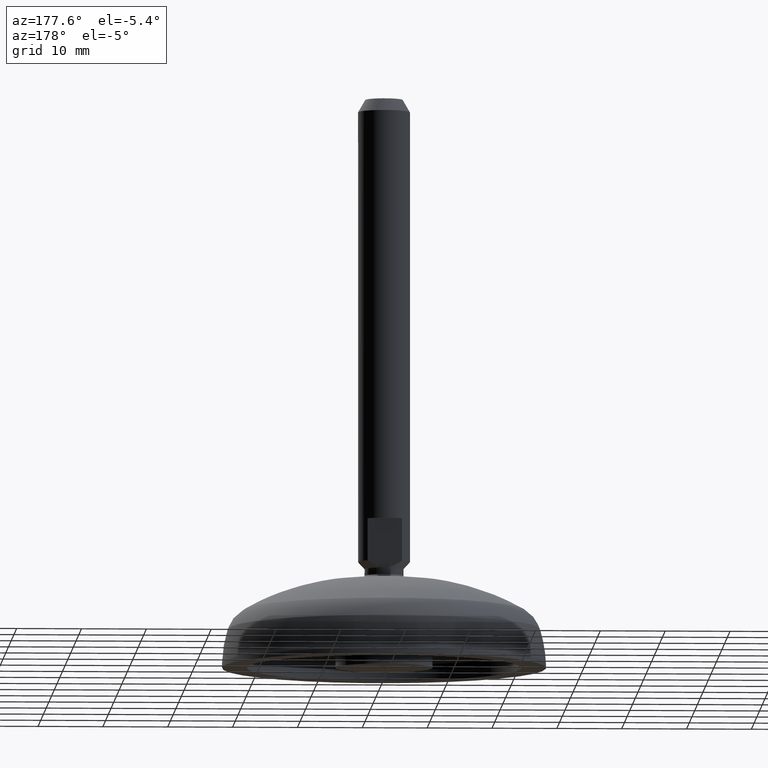
[diagram: clean part render]
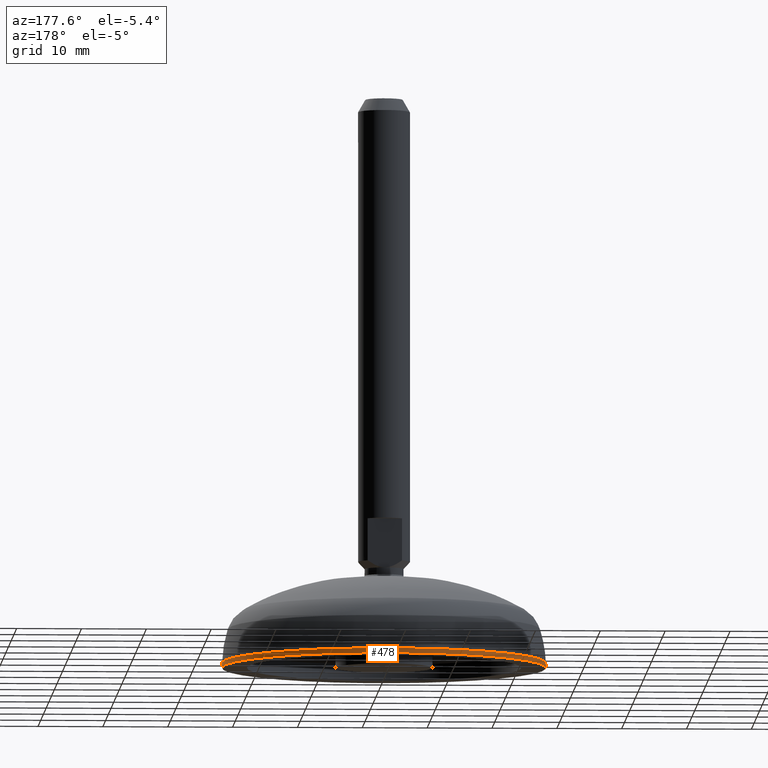
[diagram: same view with one face highlighted and labeled with its STEP entity id]
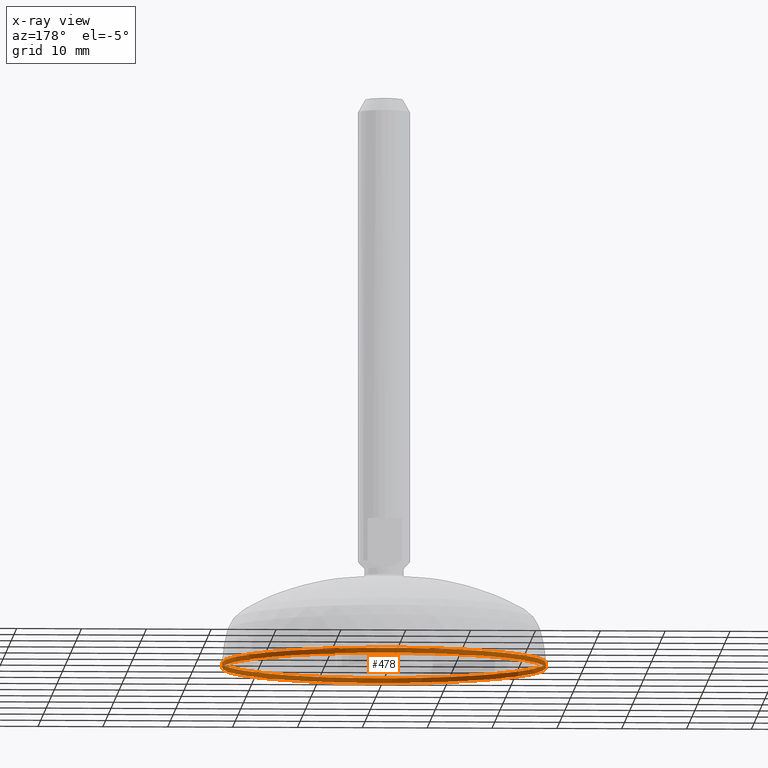
[diagram: x-ray of the same camera — body ghosted, the highlighted face saturated]
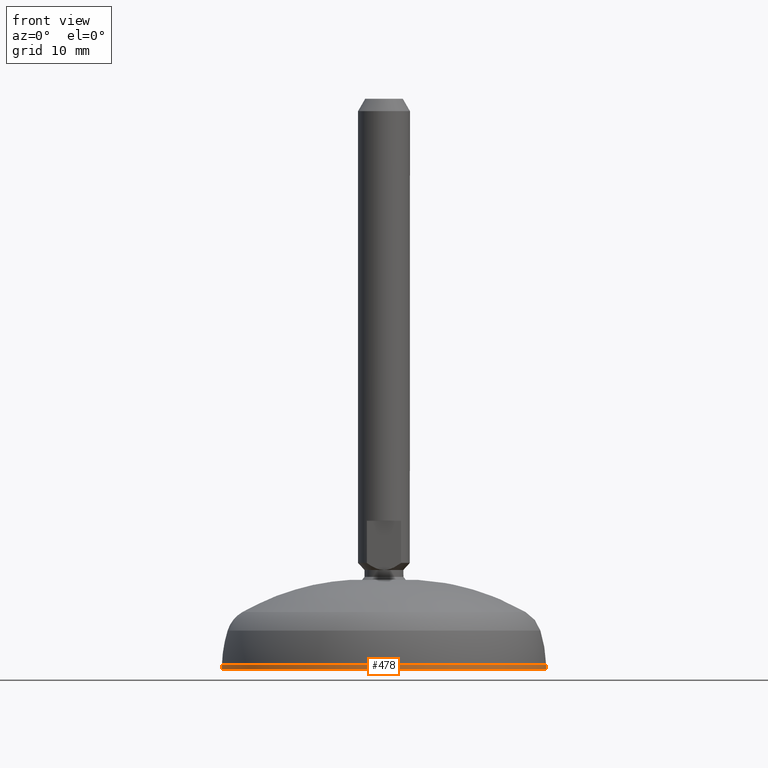
[diagram: same view with one face highlighted and labeled with its STEP entity id]
A machine part, auxiliary view. The second image highlights one B-rep face of the part: STEP entity #478.
The next image is the same camera in x-ray: the body ghosted, the highlighted face saturated — about 0% of this face is hidden behind the body in this view.
A second angle (front view) of the same face is appended — the face is thin or edge-on in the first view.
In plain terms, the highlighted face is a freeform B-spline surface patch.
Its self-contained STEP definition (entity closure, byte-faithful):
#392=CARTESIAN_POINT('',(-24.965913120644696,1.289336E-014,0.757480675003186));
#393=VERTEX_POINT('',#392);
#401=CARTESIAN_POINT('',(24.965913120644853,1.289336E-014,0.757480675003178));
#402=VERTEX_POINT('',#401);
#403=CARTESIAN_POINT('',(9.776539E-014,1.289336E-014,0.757480675003178));
#404=DIRECTION('',(0.0,0.0,-1.0));
#405=DIRECTION('',(-1.0,0.0,0.0));
#406=AXIS2_PLACEMENT_3D('',#403,#404,#405);
#407=CIRCLE('',#406,24.965913120644753);
#408=EDGE_CURVE('',#402,#393,#407,.T.);
#410=CARTESIAN_POINT('',(9.776539E-014,1.289336E-014,0.757480675003178));
#411=DIRECTION('',(0.0,0.0,-1.0));
#412=DIRECTION('',(-1.0,0.0,0.0));
#413=AXIS2_PLACEMENT_3D('',#410,#411,#412);
#414=CIRCLE('',#413,24.965913120644753);
#415=EDGE_CURVE('',#393,#402,#414,.T.);
#423=CARTESIAN_POINT('',(-24.965912858224836,-0.000001412285264,0.757488189723929));
#424=CARTESIAN_POINT('',(-24.965914270510190,24.965912858224939,0.757488189723935));
#425=CARTESIAN_POINT('',(4.888269E-014,24.965912858224936,0.757488189723937));
#426=CARTESIAN_POINT('',(24.965912858224971,24.965912858224936,0.757488189723939));
#427=CARTESIAN_POINT('',(24.965912858224975,1.289336E-014,0.757488189723937));
#428=CARTESIAN_POINT('',(24.965912858224971,-24.965912858224907,0.757488189723939));
#429=CARTESIAN_POINT('',(4.888269E-014,-24.965912858224911,0.757488189723937));
#430=CARTESIAN_POINT('',(-24.965914270510190,-24.965912858224907,0.757488189723935));
#431=CARTESIAN_POINT('',(-24.965912858224833,0.000001412285290,0.757488189723943));
#432=CARTESIAN_POINT('',(-24.992365191110380,-0.000001413781634,-0.000007514721922));
#433=CARTESIAN_POINT('',(-24.992366604892101,24.992365191110483,-0.000007514721916));
#434=CARTESIAN_POINT('',(4.888269E-014,24.992365191110483,-0.000007514721914));
#435=CARTESIAN_POINT('',(24.992365191110515,24.992365191110480,-0.000007514721911));
#436=CARTESIAN_POINT('',(24.992365191110519,1.289336E-014,-0.000007514721914));
#437=CARTESIAN_POINT('',(24.992365191110515,-24.992365191110451,-0.000007514721911));
#438=CARTESIAN_POINT('',(4.888269E-014,-24.992365191110455,-0.000007514721914));
#439=CARTESIAN_POINT('',(-24.992366604892101,-24.992365191110455,-0.000007514721916));
#440=CARTESIAN_POINT('',(-24.992365191110377,0.000001413781660,-0.000007514721908));
#448=(BOUNDED_SURFACE()B_SPLINE_SURFACE(2,1,((#423,#432),(#424,#433),(#425,#434),(#426,#435),(#427,#436),(#428,#437),(#429,#438),(#430,#439),(#431,#440)),.UNSPECIFIED.,.T.,.F.,.U.)B_SPLINE_SURFACE_WITH_KNOTS((3,2,2,2,3),(2,2),(-1.000000E-008,0.250000000000000,0.500000000000000,0.750000000000000,1.000000010000000),(0.951372946610611,0.952380962380952),.UNSPECIFIED.)GEOMETRIC_REPRESENTATION_ITEM()RATIONAL_B_SPLINE_SURFACE(((1.000000023431458,1.000000023431458),(0.707106769470819,0.707106769470819),(1.0,1.0),(0.707106781186548,0.707106781186548),(1.0,1.0),(0.707106781186548,0.707106781186548),(1.0,1.0),(0.707106769470819,0.707106769470819),(1.000000023431458,1.000000023431458)))REPRESENTATION_ITEM('')SURFACE());
#449=CARTESIAN_POINT('',(-24.992364928690630,1.289336E-014,-1.188841E-012));
#450=VERTEX_POINT('',#449);
#451=CARTESIAN_POINT('',(-24.992364928690584,1.289336E-014,-1.136868E-012));
#452=DIRECTION('',(0.034899496701975,0.0,0.999390827019114));
#453=VECTOR('',#452,0.757942393031233);
#454=LINE('',#451,#453);
#455=EDGE_CURVE('',#450,#393,#454,.T.);
#456=ORIENTED_EDGE('',*,*,#455,.F.);
#457=CARTESIAN_POINT('',(24.992364928690648,1.289336E-014,-1.214828E-012));
#458=VERTEX_POINT('',#457);
#459=CARTESIAN_POINT('',(-1.567936E-025,1.289336E-014,-1.214828E-012));
#460=DIRECTION('',(0.0,0.0,-1.0));
#461=DIRECTION('',(-1.0,0.0,0.0));
#462=AXIS2_PLACEMENT_3D('',#459,#460,#461);
#463=CIRCLE('',#462,24.992364928690648);
#464=EDGE_CURVE('',#458,#450,#463,.T.);
#465=ORIENTED_EDGE('',*,*,#464,.F.);
#466=CARTESIAN_POINT('',(-1.567936E-025,1.289336E-014,-1.214828E-012));
#467=DIRECTION('',(0.0,0.0,-1.0));
#468=DIRECTION('',(-1.0,0.0,0.0));
#469=AXIS2_PLACEMENT_3D('',#466,#467,#468);
#470=CIRCLE('',#469,24.992364928690648);
#471=EDGE_CURVE('',#450,#458,#470,.T.);
#472=ORIENTED_EDGE('',*,*,#471,.F.);
#473=ORIENTED_EDGE('',*,*,#455,.T.);
#474=ORIENTED_EDGE('',*,*,#415,.T.);
#475=ORIENTED_EDGE('',*,*,#408,.T.);
#476=EDGE_LOOP('',(#456,#465,#472,#473,#474,#475));
#477=FACE_OUTER_BOUND('',#476,.T.);
#478=ADVANCED_FACE('',(#477),#448,.T.);